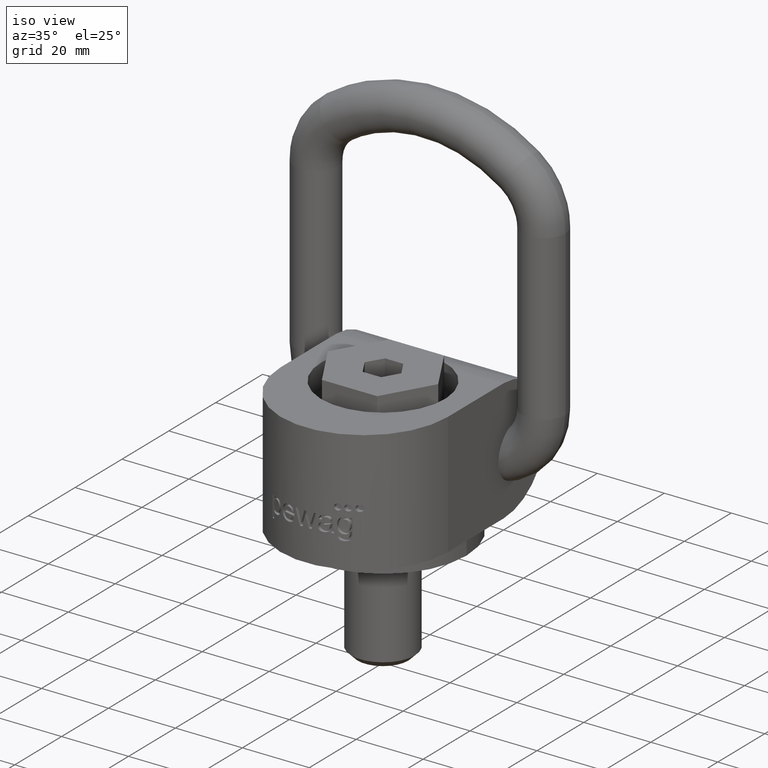
[diagram: clean part render]
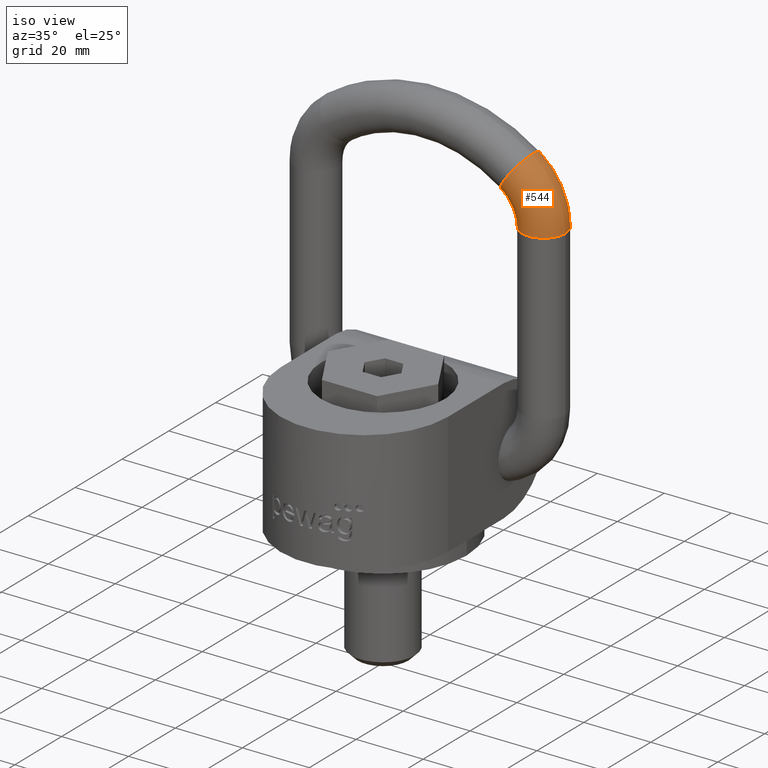
[diagram: same view with one face highlighted and labeled with its STEP entity id]
A machine part, iso view. The second image highlights one B-rep face of the part: STEP entity #544.
In plain terms, the highlighted toroidal blend (fillet) surface has major radius 16.5 mm and minor (blend) radius 6.5 mm.
Its self-contained STEP definition (entity closure, byte-faithful):
#243=TOROIDAL_SURFACE('',#2607,16.5,6.5);
#544=ADVANCED_FACE('',(#628,#629),#243,.T.);
#628=FACE_BOUND('',#791,.T.);
#629=FACE_BOUND('',#792,.T.);
#791=EDGE_LOOP('',(#1763));
#792=EDGE_LOOP('',(#1764));
#1139=CIRCLE('',#2604,6.5);
#1140=CIRCLE('',#2606,6.5);
#1763=ORIENTED_EDGE('',*,*,#2292,.F.);
#1764=ORIENTED_EDGE('',*,*,#2293,.T.);
#1979=VERTEX_POINT('',#5293);
#1980=VERTEX_POINT('',#5296);
#2292=EDGE_CURVE('',#1979,#1979,#1139,.T.);
#2293=EDGE_CURVE('',#1980,#1980,#1140,.T.);
#2604=AXIS2_PLACEMENT_3D('',#5292,#3055,#3056);
#2606=AXIS2_PLACEMENT_3D('',#5295,#3059,#3060);
#2607=AXIS2_PLACEMENT_3D('',#5297,#3061,#3062);
#3055=DIRECTION('',(-0.819016130937495,0.,0.573770491803279));
#3056=DIRECTION('',(0.573770491803279,0.,0.819016130937495));
#3059=DIRECTION('',(1.84331036808373E-15,0.,1.));
#3060=DIRECTION('',(1.,0.,-2.1350442781253E-15));
#3061=DIRECTION('',(0.,1.,0.));
#3062=DIRECTION('',(0.,0.,1.));
#5292=CARTESIAN_POINT('',(26.9672131147541,20.,92.9937581540623));
#5293=CARTESIAN_POINT('',(30.6967213114754,20.,98.317363005156));
#5295=CARTESIAN_POINT('',(34.,20.,79.4799919935936));
#5296=CARTESIAN_POINT('',(40.5,20.,79.4799919935936));
#5297=CARTESIAN_POINT('',(17.5,20.,79.4799919935936));